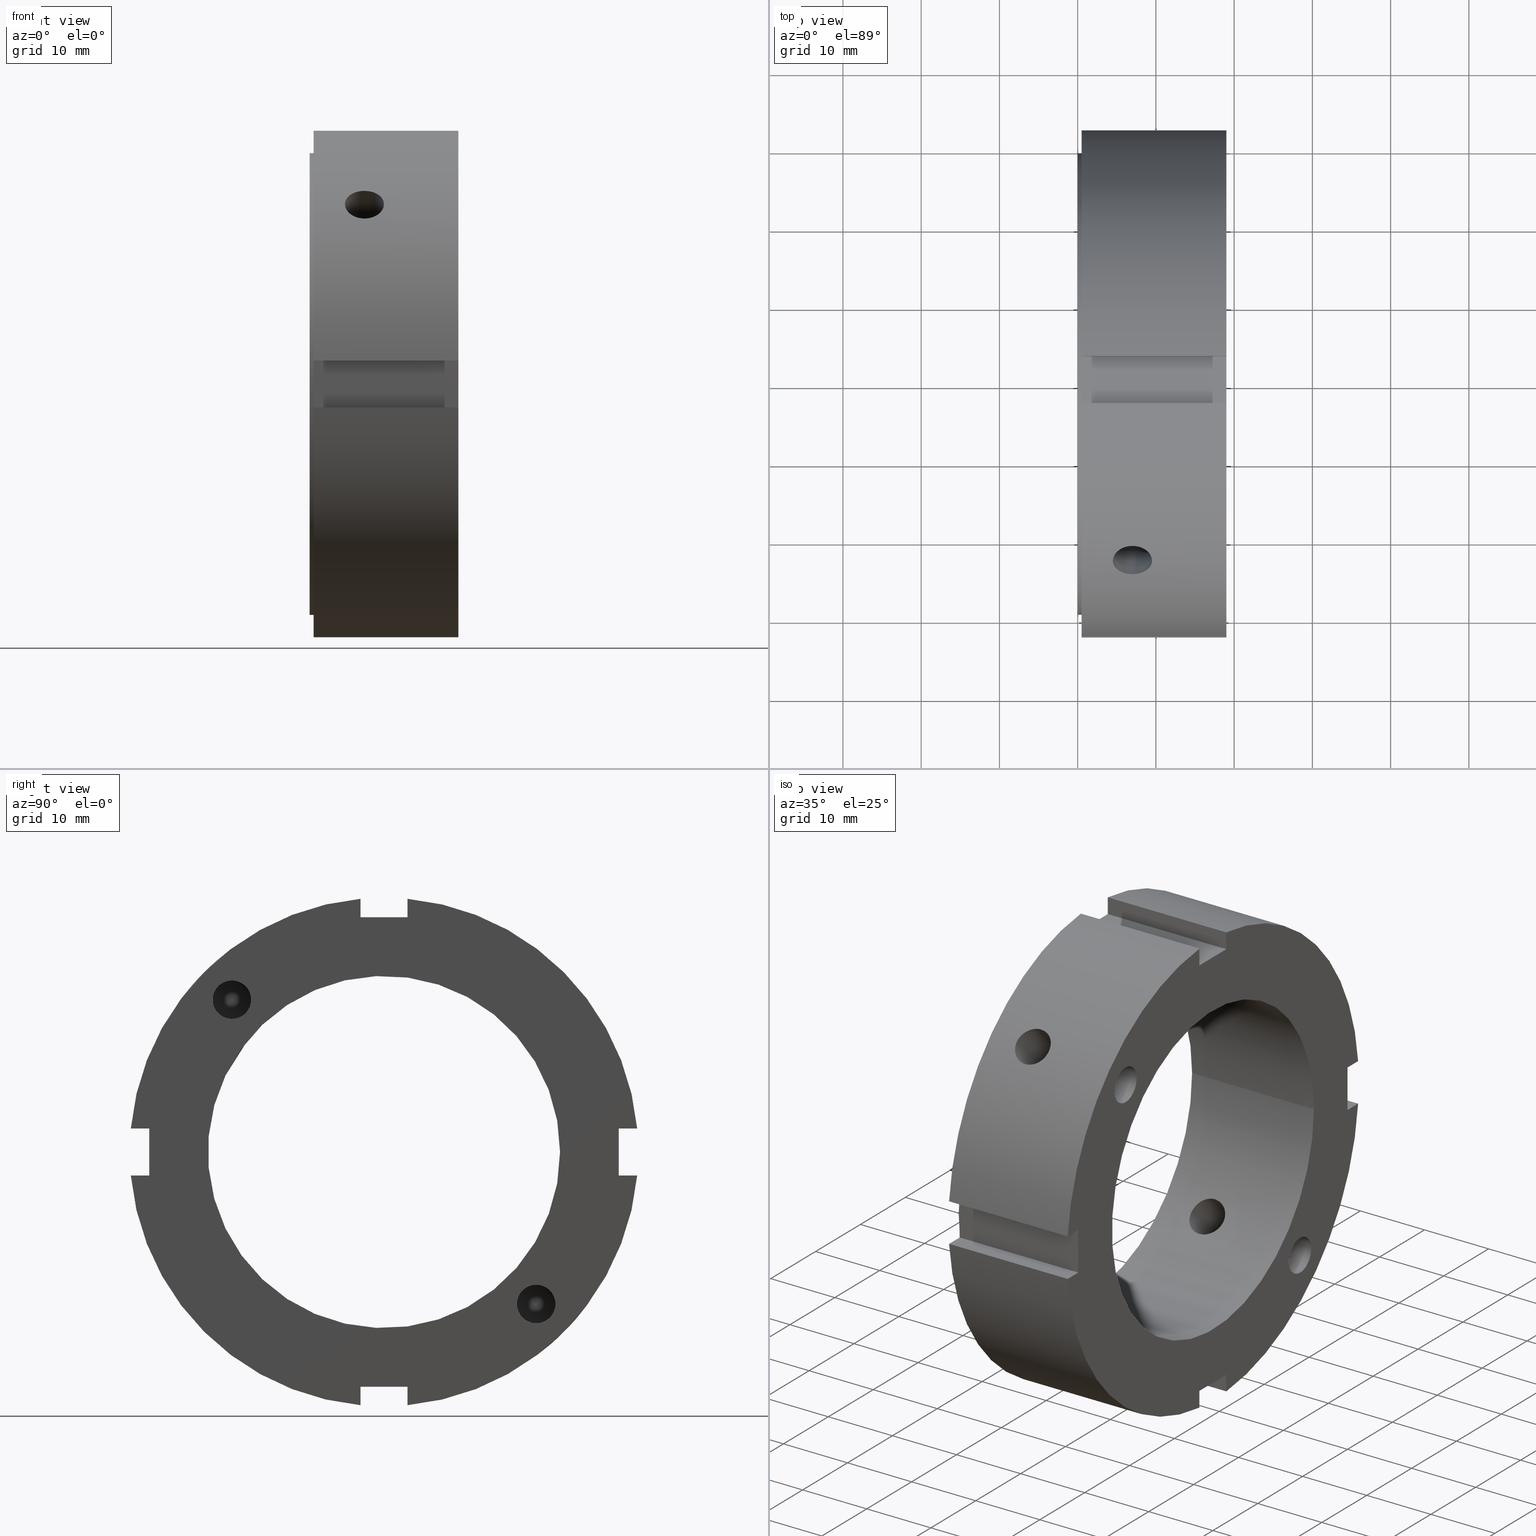
[diagram: canonical four-view strip — front | top / right | iso, engineering-drawing reading convention]
A machine part, canonical four-view strip (front | top / right | iso — engineering-drawing reading convention). The complete STEP part file that produces these views, byte-faithful:
ISO-10303-21;
HEADER;
/****************************************************************
 * Generated by software with PDE/Lib inside                    *
 * PDElib Version v51a, created Thu 01/14/2010                  *
 * ITI Transcendata (http://www.transcendata.com/)              *
 ****************************************************************/
FILE_DESCRIPTION((''),'2;1');
FILE_NAME('\\\\CAD-SVN\\cad-svn\\\X2\628088538AB2\X0\\\FKD\X2\88FD4F5C\X0\SP\\\X2\90E854C130E930A430D630E930EA\X0\\\HP \X2\30A230C330D730C730FC30C87528\X0\CAD\X2\30C730FC30BFFF0867007D42FF09\X0\\\3D data\\ZMV\\FKD ZMV 45.stp','2014-07-22T13:51:50',('fkd-ct1n'),(''),'Autodesk Inventor 2011','Autodesk Inventor 2011','');
FILE_SCHEMA(('AUTOMOTIVE_DESIGN { 1 0 10303 214 1 1 1 1 }'));
ENDSEC;
DATA;
#5=APPLICATION_CONTEXT('automotive design');
#6=APPLICATION_PROTOCOL_DEFINITION('International Standard','automotive_design',2001,#5);
#7=PRODUCT_CONTEXT('',#5,'mechanical');
#8=PRODUCT('FKD ZMV 45','FKD ZMV 45',$,(#7));
#9=PRODUCT_RELATED_PRODUCT_CATEGORY('part',$,(#8));
#10=PRODUCT_DEFINITION_FORMATION('',$,#8);
#11=PRODUCT_DEFINITION_CONTEXT('part definition',#5,'design');
#12=PRODUCT_DEFINITION('',$,#10,#11);
#18=(NAMED_UNIT(*)PLANE_ANGLE_UNIT()SI_UNIT($,.RADIAN.));
#19=DIMENSIONAL_EXPONENTS(0.0,0.0,0.0,0.0,0.0,0.0,0.0);
#20=PLANE_ANGLE_MEASURE_WITH_UNIT(PLANE_ANGLE_MEASURE(0.017453292500000),#18);
#24=(CONVERSION_BASED_UNIT('DEGREE',#20)NAMED_UNIT(#19)PLANE_ANGLE_UNIT());
#28=(NAMED_UNIT(*)SI_UNIT($,.STERADIAN.)SOLID_ANGLE_UNIT());
#32=(LENGTH_UNIT()NAMED_UNIT(*)SI_UNIT(.MILLI.,.METRE.));
#34=UNCERTAINTY_MEASURE_WITH_UNIT(LENGTH_MEASURE(0.010000000000000),#32,'DISTANCE_ACCURACY_VALUE','');
#36=(GEOMETRIC_REPRESENTATION_CONTEXT(3)GLOBAL_UNCERTAINTY_ASSIGNED_CONTEXT((#34))GLOBAL_UNIT_ASSIGNED_CONTEXT((#24,#28,#32))REPRESENTATION_CONTEXT('None','None'));
#37=AXIS2_PLACEMENT_3D('',#38,#39,#40);
#38=CARTESIAN_POINT('',(0.0,0.0,0.0));
#39=DIRECTION('',(0.0,0.0,1.0));
#40=DIRECTION('',(1.0,0.0,0.0));
#41=SHAPE_REPRESENTATION('',(#37),#36);
#42=PRODUCT_DEFINITION_SHAPE('','',#12);
#43=SHAPE_DEFINITION_REPRESENTATION(#42,#41);
#49=(NAMED_UNIT(*)PLANE_ANGLE_UNIT()SI_UNIT($,.RADIAN.));
#50=DIMENSIONAL_EXPONENTS(0.0,0.0,0.0,0.0,0.0,0.0,0.0);
#51=PLANE_ANGLE_MEASURE_WITH_UNIT(PLANE_ANGLE_MEASURE(0.017453292500000),#49);
#55=(CONVERSION_BASED_UNIT('DEGREE',#51)NAMED_UNIT(#50)PLANE_ANGLE_UNIT());
#59=(NAMED_UNIT(*)SI_UNIT($,.STERADIAN.)SOLID_ANGLE_UNIT());
#63=(LENGTH_UNIT()NAMED_UNIT(*)SI_UNIT(.MILLI.,.METRE.));
#65=UNCERTAINTY_MEASURE_WITH_UNIT(LENGTH_MEASURE(0.000001000000000),#63,'DISTANCE_ACCURACY_VALUE','');
#67=(GEOMETRIC_REPRESENTATION_CONTEXT(3)GLOBAL_UNCERTAINTY_ASSIGNED_CONTEXT((#65))GLOBAL_UNIT_ASSIGNED_CONTEXT((#55,#59,#63))REPRESENTATION_CONTEXT('','3D'));
#68=CARTESIAN_POINT('',(12.999999999999993,-19.445436482630047,19.445436482630065));
#69=DIRECTION('',(1.0,0.0,0.0));
#70=DIRECTION('',(0.0,0.0,1.0));
#71=AXIS2_PLACEMENT_3D('',#68,#69,#70);
#72=CYLINDRICAL_SURFACE('',#71,2.458500000000000);
#73=CARTESIAN_POINT('',(7.453627325014694,-21.183858504177181,17.707014461082942));
#74=VERTEX_POINT('',#73);
#75=CARTESIAN_POINT('',(7.453627325014694,-21.183858504177181,17.707014461082942));
#76=CARTESIAN_POINT('',(7.453627325014693,-21.110358126241778,17.633514083147542));
#77=CARTESIAN_POINT('',(7.485845144440775,-21.047802881600568,17.579208328488434));
#78=CARTESIAN_POINT('',(7.564508256890326,-20.925459364847416,17.480768485808394));
#79=CARTESIAN_POINT('',(7.612937817032506,-20.866150654097172,17.437637148322658));
#80=CARTESIAN_POINT('',(7.772228880000061,-20.681130872826486,17.314892414704659));
#81=CARTESIAN_POINT('',(7.895505545516923,-20.551120089678967,17.244094249145682));
#82=CARTESIAN_POINT('',(8.283828024816536,-20.121487460295356,17.061309000246240));
#83=CARTESIAN_POINT('',(8.561851096446020,-19.788585721959240,16.986936482630064));
#84=CARTESIAN_POINT('',(8.987347846502070,-19.166693223980413,16.986936482630064));
#85=CARTESIAN_POINT('',(9.170926118717720,-18.850775313804682,17.037495510761026));
#86=CARTESIAN_POINT('',(9.363473477026188,-18.392928171974624,17.217580192653223));
#87=CARTESIAN_POINT('',(9.414345366287385,-18.242718107297030,17.294551654487119));
#88=CARTESIAN_POINT('',(9.482622830029026,-17.959460337843371,17.479549422815367));
#89=CARTESIAN_POINT('',(9.499999999999993,-17.826424516589643,17.587604405576219));
#90=CARTESIAN_POINT('',(9.499999999999993,-17.587604405576204,17.826424516589654));
#91=CARTESIAN_POINT('',(9.482622830029026,-17.479549422815357,17.959460337843382));
#92=CARTESIAN_POINT('',(9.414345366287385,-17.294551654487105,18.242718107297044));
#93=CARTESIAN_POINT('',(9.363473477026188,-17.217580192653209,18.392928171974642));
#94=CARTESIAN_POINT('',(9.170926118717718,-17.037495510761012,18.850775313804700));
#95=CARTESIAN_POINT('',(8.987347846502070,-16.986936482630043,19.166693223980428));
#96=CARTESIAN_POINT('',(8.561851096446020,-16.986936482630043,19.788585721959254));
#97=CARTESIAN_POINT('',(8.283828024816542,-17.061309000246226,20.121487460295381));
#98=CARTESIAN_POINT('',(7.895505545516923,-17.244094249145661,20.551120089678992));
#99=CARTESIAN_POINT('',(7.772228880000050,-17.314892414704637,20.681130872826493));
#100=CARTESIAN_POINT('',(7.612937817032490,-17.437637148322640,20.866150654097186));
#101=CARTESIAN_POINT('',(7.564508256890323,-17.480768485808380,20.925459364847431));
#102=CARTESIAN_POINT('',(7.485845144440773,-17.579208328488424,21.047802881600589));
#103=CARTESIAN_POINT('',(7.453627325014677,-17.633514083147521,21.110358126241799));
#104=CARTESIAN_POINT('',(7.453627325014677,-17.780514839018316,21.257358882112595));
#105=CARTESIAN_POINT('',(7.485845144440775,-17.843070083659526,21.311664636771688));
#106=CARTESIAN_POINT('',(7.564508256890327,-17.965413600412681,21.410104479451732));
#107=CARTESIAN_POINT('',(7.612937817032500,-18.024722311162922,21.453235816937468));
#108=CARTESIAN_POINT('',(7.772228880000055,-18.209742092433615,21.575980550555471));
#109=CARTESIAN_POINT('',(7.895505545516919,-18.339752875581119,21.646778716114451));
#110=CARTESIAN_POINT('',(8.283828024816536,-18.769385504964731,21.829563965013890));
#111=CARTESIAN_POINT('',(8.561851096446020,-19.102287243300857,21.903936482630073));
#112=CARTESIAN_POINT('',(8.987347846502070,-19.724179741279684,21.903936482630073));
#113=CARTESIAN_POINT('',(9.170926118717723,-20.040097651455419,21.853377454499103));
#114=CARTESIAN_POINT('',(9.363473477026192,-20.497944793285477,21.673292772606906));
#115=CARTESIAN_POINT('',(9.414345366287385,-20.648154857963071,21.596321310773007));
#116=CARTESIAN_POINT('',(9.482622830029024,-20.931412627416726,21.411323542444759));
#117=CARTESIAN_POINT('',(9.499999999999993,-21.064448448670454,21.303268559683911));
#118=CARTESIAN_POINT('',(9.499999999999993,-21.303268559683893,21.064448448670475));
#119=CARTESIAN_POINT('',(9.482622830029028,-21.411323542444730,20.931412627416748));
#120=CARTESIAN_POINT('',(9.414345366287389,-21.596321310772982,20.648154857963096));
#121=CARTESIAN_POINT('',(9.363473477026194,-21.673292772606878,20.497944793285502));
#122=CARTESIAN_POINT('',(9.170926118717729,-21.853377454499075,20.040097651455451));
#123=CARTESIAN_POINT('',(8.987347846502079,-21.903936482630044,19.724179741279720));
#124=CARTESIAN_POINT('',(8.561851096446036,-21.903936482630051,19.102287243300896));
#125=CARTESIAN_POINT('',(8.283828024816556,-21.829563965013875,18.769385504964770));
#126=CARTESIAN_POINT('',(7.895505545516941,-21.646778716114436,18.339752875581159));
#127=CARTESIAN_POINT('',(7.772228880000065,-21.575980550555471,18.209742092433654));
#128=CARTESIAN_POINT('',(7.612937817032510,-21.453235816937468,18.024722311162961));
#129=CARTESIAN_POINT('',(7.564508256890340,-21.410104479451732,17.965413600412717));
#130=CARTESIAN_POINT('',(7.485845144440786,-21.311664636771688,17.843070083659562));
#131=CARTESIAN_POINT('',(7.453627325014701,-21.257358882112580,17.780514839018341));
#132=CARTESIAN_POINT('',(7.453627325014701,-21.183858504177181,17.707014461082942));
#133=B_SPLINE_CURVE_WITH_KNOTS('',3,(#75,#76,#77,#78,#79,#80,#81,#82,#83,#84,#85,#86,#87,#88,#89,#90,#91,#92,#93,#94,#95,#96,#97,#98,#99,#100,#101,#102,#103,#104,#105,#106,#107,#108,#109,#110,#111,#112,#113,#114,#115,#116,#117,#118,#119,#120,#121,#122,#123,#124,#125,#126,#127,#128,#129,#130,#131,#132),.UNSPECIFIED.,.T.,.U.,(4,2,2,2,2,2,2,2,2,2,2,2,2,2,2,2,2,2,2,2,2,2,2,2,2,2,2,2,4),(0.0,0.031183569394737,0.062367138789473,0.124734277578946,0.249468555157892,0.350791347146687,0.401452743141084,0.452114139135482,0.502775535129879,0.553436931124277,0.654759723113072,0.779494000692019,0.841861139481492,0.873044708876229,0.904228278270966,0.935411847665702,0.966595417060439,1.028962555849913,1.153696833428859,1.255019625417654,1.305681021412052,1.356342417406449,1.407003813400846,1.457665209395243,1.558988001384037,1.683722278962982,1.746089417752454,1.777272987147191,1.808456556541927),.UNSPECIFIED.);
#134=EDGE_CURVE('',#74,#74,#133,.T.);
#135=ORIENTED_EDGE('',*,*,#134,.F.);
#136=EDGE_LOOP('',(#135));
#137=FACE_OUTER_BOUND('',#136,.T.);
#138=CARTESIAN_POINT('',(18.999999999999993,-19.445436482630047,21.903936482630066));
#139=VERTEX_POINT('',#138);
#140=CARTESIAN_POINT('',(18.999999999999993,-19.445436482630047,19.445436482630065));
#141=DIRECTION('',(-1.0,0.0,0.0));
#142=DIRECTION('',(0.0,0.0,1.0));
#143=AXIS2_PLACEMENT_3D('',#140,#141,#142);
#144=CIRCLE('',#143,2.458500000000000);
#145=EDGE_CURVE('',#139,#139,#144,.T.);
#146=ORIENTED_EDGE('',*,*,#145,.F.);
#147=EDGE_LOOP('',(#146));
#148=FACE_BOUND('',#147,.T.);
#149=ADVANCED_FACE('',(#137,#148),#72,.F.);
#150=CARTESIAN_POINT('',(12.999999999999993,19.445436482630051,-19.445436482630065));
#151=DIRECTION('',(1.0,0.0,0.0));
#152=DIRECTION('',(0.0,0.0,-1.0));
#153=AXIS2_PLACEMENT_3D('',#150,#151,#152);
#154=CYLINDRICAL_SURFACE('',#153,2.458500000000000);
#155=CARTESIAN_POINT('',(7.453627325014712,17.707014461082927,-21.183858504177199));
#156=VERTEX_POINT('',#155);
#157=CARTESIAN_POINT('',(7.453627325014694,17.707014461082927,-21.183858504177199));
#158=CARTESIAN_POINT('',(7.453627325014697,17.780514839018323,-21.257358882112595));
#159=CARTESIAN_POINT('',(7.485845144440799,17.843070083659555,-21.311664636771713));
#160=CARTESIAN_POINT('',(7.564508256890359,17.965413600412720,-21.410104479451761));
#161=CARTESIAN_POINT('',(7.612937817032519,18.024722311162975,-21.453235816937504));
#162=CARTESIAN_POINT('',(7.772228880000082,18.209742092433668,-21.575980550555499));
#163=CARTESIAN_POINT('',(7.895505545516970,18.339752875581166,-21.646778716114468));
#164=CARTESIAN_POINT('',(8.283828024816582,18.769385504964781,-21.829563965013897));
#165=CARTESIAN_POINT('',(8.561851096446061,19.102287243300900,-21.903936482630058));
#166=CARTESIAN_POINT('',(8.987347846502093,19.724179741279716,-21.903936482630048));
#167=CARTESIAN_POINT('',(9.170926118717734,20.040097651455447,-21.853377454499089));
#168=CARTESIAN_POINT('',(9.363473477026195,20.497944793285487,-21.673292772606892));
#169=CARTESIAN_POINT('',(9.414345366287389,20.648154857963078,-21.596321310773000));
#170=CARTESIAN_POINT('',(9.482622830029026,20.931412627416726,-21.411323542444759));
#171=CARTESIAN_POINT('',(9.499999999999993,21.064448448670458,-21.303268559683900));
#172=CARTESIAN_POINT('',(9.499999999999993,21.303268559683893,-21.064448448670468));
#173=CARTESIAN_POINT('',(9.482622830029028,21.411323542444745,-20.931412627416744));
#174=CARTESIAN_POINT('',(9.414345366287385,21.596321310772993,-20.648154857963085));
#175=CARTESIAN_POINT('',(9.363473477026187,21.673292772606885,-20.497944793285484));
#176=CARTESIAN_POINT('',(9.170926118717720,21.853377454499086,-20.040097651455433));
#177=CARTESIAN_POINT('',(8.987347846502079,21.903936482630037,-19.724179741279702));
#178=CARTESIAN_POINT('',(8.561851096446040,21.903936482630037,-19.102287243300886));
#179=CARTESIAN_POINT('',(8.283828024816549,21.829563965013882,-18.769385504964774));
#180=CARTESIAN_POINT('',(7.895505545516941,21.646778716114447,-18.339752875581166));
#181=CARTESIAN_POINT('',(7.772228880000068,21.575980550555478,-18.209742092433661));
#182=CARTESIAN_POINT('',(7.612937817032515,21.453235816937479,-18.024722311162968));
#183=CARTESIAN_POINT('',(7.564508256890344,21.410104479451736,-17.965413600412717));
#184=CARTESIAN_POINT('',(7.485845144440787,21.311664636771688,-17.843070083659558));
#185=CARTESIAN_POINT('',(7.453627325014747,21.257358882112563,-17.780514839018338));
#186=CARTESIAN_POINT('',(7.453627325014747,21.110358126241771,-17.633514083147546));
#187=CARTESIAN_POINT('',(7.485845144440798,21.047802881600539,-17.579208328488413));
#188=CARTESIAN_POINT('',(7.564508256890358,20.925459364847381,-17.480768485808369));
#189=CARTESIAN_POINT('',(7.612937817032524,20.866150654097140,-17.437637148322636));
#190=CARTESIAN_POINT('',(7.772228880000091,20.681130872826454,-17.314892414704637));
#191=CARTESIAN_POINT('',(7.895505545516953,20.551120089678932,-17.244094249145657));
#192=CARTESIAN_POINT('',(8.283828024816561,20.121487460295320,-17.061309000246222));
#193=CARTESIAN_POINT('',(8.561851096446038,19.788585721959226,-16.986936482630064));
#194=CARTESIAN_POINT('',(8.987347846502081,19.166693223980403,-16.986936482630064));
#195=CARTESIAN_POINT('',(9.170926118717729,18.850775313804672,-17.037495510761026));
#196=CARTESIAN_POINT('',(9.363473477026195,18.392928171974617,-17.217580192653230));
#197=CARTESIAN_POINT('',(9.414345366287387,18.242718107297019,-17.294551654487126));
#198=CARTESIAN_POINT('',(9.482622830029028,17.959460337843357,-17.479549422815378));
#199=CARTESIAN_POINT('',(9.499999999999995,17.826424516589633,-17.587604405576233));
#200=CARTESIAN_POINT('',(9.499999999999991,17.587604405576197,-17.826424516589668));
#201=CARTESIAN_POINT('',(9.482622830029023,17.479549422815346,-17.959460337843396));
#202=CARTESIAN_POINT('',(9.414345366287382,17.294551654487101,-18.242718107297055));
#203=CARTESIAN_POINT('',(9.363473477026185,17.217580192653209,-18.392928171974653));
#204=CARTESIAN_POINT('',(9.170926118717715,17.037495510761012,-18.850775313804704));
#205=CARTESIAN_POINT('',(8.987347846502068,16.986936482630053,-19.166693223980438));
#206=CARTESIAN_POINT('',(8.561851096446024,16.986936482630057,-19.788585721959265));
#207=CARTESIAN_POINT('',(8.283828024816538,17.061309000246222,-20.121487460295370));
#208=CARTESIAN_POINT('',(7.895505545516929,17.244094249145657,-20.551120089678978));
#209=CARTESIAN_POINT('',(7.772228880000074,17.314892414704637,-20.681130872826490));
#210=CARTESIAN_POINT('',(7.612937817032517,17.437637148322636,-20.866150654097176));
#211=CARTESIAN_POINT('',(7.564508256890345,17.480768485808365,-20.925459364847413));
#212=CARTESIAN_POINT('',(7.485845144440796,17.579208328488413,-21.047802881600571));
#213=CARTESIAN_POINT('',(7.453627325014710,17.633514083147531,-21.110358126241803));
#214=CARTESIAN_POINT('',(7.453627325014712,17.707014461082927,-21.183858504177199));
#215=B_SPLINE_CURVE_WITH_KNOTS('',3,(#157,#158,#159,#160,#161,#162,#163,#164,#165,#166,#167,#168,#169,#170,#171,#172,#173,#174,#175,#176,#177,#178,#179,#180,#181,#182,#183,#184,#185,#186,#187,#188,#189,#190,#191,#192,#193,#194,#195,#196,#197,#198,#199,#200,#201,#202,#203,#204,#205,#206,#207,#208,#209,#210,#211,#212,#213,#214),.UNSPECIFIED.,.T.,.U.,(4,2,2,2,2,2,2,2,2,2,2,2,2,2,2,2,2,2,2,2,2,2,2,2,2,2,2,2,4),(0.0,0.031183569394736,0.062367138789472,0.124734277578943,0.249468555157887,0.350791347146679,0.401452743141076,0.452114139135472,0.502775535129869,0.553436931124266,0.654759723113060,0.779494000692003,0.841861139481475,0.873044708876211,0.904228278270947,0.935411847665683,0.966595417060419,1.028962555849891,1.153696833428835,1.255019625417630,1.305681021412028,1.356342417406425,1.407003813400822,1.457665209395219,1.558988001384014,1.683722278962959,1.746089417752431,1.777272987147168,1.808456556541904),.UNSPECIFIED.);
#216=EDGE_CURVE('',#156,#156,#215,.T.);
#217=ORIENTED_EDGE('',*,*,#216,.F.);
#218=EDGE_LOOP('',(#217));
#219=FACE_OUTER_BOUND('',#218,.T.);
#220=CARTESIAN_POINT('',(18.999999999999993,19.445436482630051,-21.903936482630062));
#221=VERTEX_POINT('',#220);
#222=CARTESIAN_POINT('',(18.999999999999993,19.445436482630051,-19.445436482630065));
#223=DIRECTION('',(-1.0,0.0,0.0));
#224=DIRECTION('',(0.0,0.0,-1.0));
#225=AXIS2_PLACEMENT_3D('',#222,#223,#224);
#226=CIRCLE('',#225,2.458500000000000);
#227=EDGE_CURVE('',#221,#221,#226,.T.);
#228=ORIENTED_EDGE('',*,*,#227,.F.);
#229=EDGE_LOOP('',(#228));
#230=FACE_BOUND('',#229,.T.);
#231=ADVANCED_FACE('',(#219,#230),#154,.F.);
#232=CARTESIAN_POINT('',(6.999999999999993,-43.121223221029304,43.121223221029339));
#233=DIRECTION('',(0.0,0.707106781186547,-0.707106781186548));
#234=DIRECTION('',(-1.0,0.0,0.0));
#235=AXIS2_PLACEMENT_3D('',#232,#233,#234);
#236=CYLINDRICAL_SURFACE('',#235,2.500000000000000);
#237=CARTESIAN_POINT('',(6.999999999999993,-14.043621347875519,17.579155253808270));
#238=VERTEX_POINT('',#237);
#239=CARTESIAN_POINT('',(6.999999999999994,-14.043621347875519,17.579155253808270));
#240=CARTESIAN_POINT('',(6.685815010734660,-14.043621347875519,17.579155253808270));
#241=CARTESIAN_POINT('',(6.350866698850043,-14.093223241805173,17.539883571675340));
#242=CARTESIAN_POINT('',(5.734995938231306,-14.292309527771041,17.378042045223999));
#243=CARTESIAN_POINT('',(5.454051212351734,-14.441511353606579,17.255209611380181));
#244=CARTESIAN_POINT('',(5.010416035019474,-14.779931617737045,16.966234990981569));
#245=CARTESIAN_POINT('',(4.818057863310505,-14.991738989516554,16.780725808899280));
#246=CARTESIAN_POINT('',(4.562842692694734,-15.445767425041923,16.363779063910506));
#247=CARTESIAN_POINT('',(4.499999999999992,-15.687741395334189,16.132063758060447));
#248=CARTESIAN_POINT('',(4.499999999999994,-16.132063758060436,15.687741395334204));
#249=CARTESIAN_POINT('',(4.562842692694736,-16.363779063910496,15.445767425041934));
#250=CARTESIAN_POINT('',(4.818057863310505,-16.780725808899270,14.991738989516566));
#251=CARTESIAN_POINT('',(5.010416035019474,-16.966234990981558,14.779931617737056));
#252=CARTESIAN_POINT('',(5.454051212351734,-17.255209611380167,14.441511353606590));
#253=CARTESIAN_POINT('',(5.734995938231307,-17.378042045223985,14.292309527771057));
#254=CARTESIAN_POINT('',(6.350866698850044,-17.539883571675325,14.093223241805187));
#255=CARTESIAN_POINT('',(6.685815010734659,-17.579155253808256,14.043621347875540));
#256=CARTESIAN_POINT('',(7.314184989265327,-17.579155253808256,14.043621347875542));
#257=CARTESIAN_POINT('',(7.649133301149941,-17.539883571675322,14.093223241805191));
#258=CARTESIAN_POINT('',(8.265004061768677,-17.378042045223985,14.292309527771058));
#259=CARTESIAN_POINT('',(8.545948787648252,-17.255209611380167,14.441511353606591));
#260=CARTESIAN_POINT('',(8.989583964980511,-16.966234990981555,14.779931617737054));
#261=CARTESIAN_POINT('',(9.181942136689480,-16.780725808899266,14.991738989516568));
#262=CARTESIAN_POINT('',(9.437157307305251,-16.363779063910496,15.445767425041934));
#263=CARTESIAN_POINT('',(9.499999999999991,-16.132063758060436,15.687741395334204));
#264=CARTESIAN_POINT('',(9.499999999999995,-15.687741395334189,16.132063758060447));
#265=CARTESIAN_POINT('',(9.437157307305252,-15.445767425041922,16.363779063910506));
#266=CARTESIAN_POINT('',(9.181942136689482,-14.991738989516552,16.780725808899280));
#267=CARTESIAN_POINT('',(8.989583964980515,-14.779931617737045,16.966234990981569));
#268=CARTESIAN_POINT('',(8.545948787648252,-14.441511353606579,17.255209611380181));
#269=CARTESIAN_POINT('',(8.265004061768682,-14.292309527771041,17.378042045223999));
#270=CARTESIAN_POINT('',(7.649133301149945,-14.093223241805173,17.539883571675340));
#271=CARTESIAN_POINT('',(7.314184989265327,-14.043621347875519,17.579155253808270));
#272=CARTESIAN_POINT('',(6.999999999999993,-14.043621347875519,17.579155253808270));
#273=B_SPLINE_CURVE_WITH_KNOTS('',3,(#239,#240,#241,#242,#243,#244,#245,#246,#247,#248,#249,#250,#251,#252,#253,#254,#255,#256,#257,#258,#259,#260,#261,#262,#263,#264,#265,#266,#267,#268,#269,#270,#271,#272),.UNSPECIFIED.,.T.,.U.,(4,2,2,2,2,2,2,2,2,2,2,2,2,2,2,2,4),(0.0,0.094255496779600,0.188510993559200,0.282766000274168,0.377021006989135,0.471276013704102,0.565531020419070,0.659786517198670,0.754042013978270,0.848297510757870,0.942553007537470,1.036808014252437,1.131063020967405,1.225318027682372,1.319573034397340,1.413828531176940,1.508084027956540),.UNSPECIFIED.);
#274=EDGE_CURVE('',#238,#238,#273,.T.);
#275=ORIENTED_EDGE('',*,*,#274,.F.);
#276=EDGE_LOOP('',(#275));
#277=FACE_OUTER_BOUND('',#276,.T.);
#278=ORIENTED_EDGE('',*,*,#134,.T.);
#279=EDGE_LOOP('',(#278));
#280=FACE_BOUND('',#279,.T.);
#281=CARTESIAN_POINT('',(6.999999999999993,-21.145111521812822,24.680645427745578));
#282=VERTEX_POINT('',#281);
#283=CARTESIAN_POINT('',(6.999999999999993,-21.145111521812822,24.680645427745578));
#284=CARTESIAN_POINT('',(7.314038878983578,-21.145111521812822,24.680645427745578));
#285=CARTESIAN_POINT('',(7.648925005757864,-21.193068525340326,24.639809402754448));
#286=CARTESIAN_POINT('',(8.264836526164988,-21.386358016310318,24.472230214677197));
#287=CARTESIAN_POINT('',(8.545872481211177,-21.531499546972416,24.345305718344228));
#288=CARTESIAN_POINT('',(8.989661161289906,-21.862399633320805,24.048593834497627));
#289=CARTESIAN_POINT('',(9.182041097539965,-22.070218890903689,23.858968067764383));
#290=CARTESIAN_POINT('',(9.437213945238458,-22.518562594759700,23.436280801691414));
#291=CARTESIAN_POINT('',(9.499999999999993,-22.758911631304262,23.203029145821326));
#292=CARTESIAN_POINT('',(9.499999999999993,-23.203029145821308,22.758911631304279));
#293=CARTESIAN_POINT('',(9.437213945238455,-23.436280801691399,22.518562594759718));
#294=CARTESIAN_POINT('',(9.182041097539964,-23.858968067764369,22.070218890903707));
#295=CARTESIAN_POINT('',(8.989661161289906,-24.048593834497609,21.862399633320820));
#296=CARTESIAN_POINT('',(8.545872481211177,-24.345305718344214,21.531499546972434));
#297=CARTESIAN_POINT('',(8.264836526164986,-24.472230214677182,21.386358016310339));
#298=CARTESIAN_POINT('',(7.648925005757864,-24.639809402754437,21.193068525340347));
#299=CARTESIAN_POINT('',(7.314038878983578,-24.680645427745553,21.145111521812847));
#300=CARTESIAN_POINT('',(6.685961121016407,-24.680645427745556,21.145111521812847));
#301=CARTESIAN_POINT('',(6.351074994242119,-24.639809402754437,21.193068525340347));
#302=CARTESIAN_POINT('',(5.735163473834999,-24.472230214677182,21.386358016310339));
#303=CARTESIAN_POINT('',(5.454127518788808,-24.345305718344214,21.531499546972441));
#304=CARTESIAN_POINT('',(5.010338838710080,-24.048593834497609,21.862399633320820));
#305=CARTESIAN_POINT('',(4.817958902460022,-23.858968067764369,22.070218890903707));
#306=CARTESIAN_POINT('',(4.562786054761530,-23.436280801691399,22.518562594759718));
#307=CARTESIAN_POINT('',(4.499999999999993,-23.203029145821308,22.758911631304279));
#308=CARTESIAN_POINT('',(4.499999999999993,-22.758911631304262,23.203029145821326));
#309=CARTESIAN_POINT('',(4.562786054761529,-22.518562594759700,23.436280801691414));
#310=CARTESIAN_POINT('',(4.817958902460021,-22.070218890903689,23.858968067764383));
#311=CARTESIAN_POINT('',(5.010338838710078,-21.862399633320805,24.048593834497627));
#312=CARTESIAN_POINT('',(5.454127518788807,-21.531499546972416,24.345305718344228));
#313=CARTESIAN_POINT('',(5.735163473834999,-21.386358016310318,24.472230214677204));
#314=CARTESIAN_POINT('',(6.351074994242124,-21.193068525340326,24.639809402754452));
#315=CARTESIAN_POINT('',(6.685961121016407,-21.145111521812822,24.680645427745578));
#316=CARTESIAN_POINT('',(6.999999999999993,-21.145111521812822,24.680645427745578));
#317=B_SPLINE_CURVE_WITH_KNOTS('',3,(#283,#284,#285,#286,#287,#288,#289,#290,#291,#292,#293,#294,#295,#296,#297,#298,#299,#300,#301,#302,#303,#304,#305,#306,#307,#308,#309,#310,#311,#312,#313,#314,#315,#316),.UNSPECIFIED.,.T.,.U.,(4,2,2,2,2,2,2,2,2,2,2,2,2,2,2,2,4),(0.0,0.094211663695076,0.188423327390152,0.282634879237766,0.376846431085381,0.471057982932996,0.565269534780610,0.659481198475686,0.753692862170762,0.847904525865837,0.942116189560913,1.036327741408528,1.130539293256142,1.224750845103757,1.318962396951372,1.413174060646448,1.507385724341523),.UNSPECIFIED.);
#318=EDGE_CURVE('',#282,#282,#317,.T.);
#319=ORIENTED_EDGE('',*,*,#318,.F.);
#320=EDGE_LOOP('',(#319));
#321=FACE_BOUND('',#320,.T.);
#322=ADVANCED_FACE('',(#277,#280,#321),#236,.F.);
#323=CARTESIAN_POINT('',(6.999999999999993,-43.121223221029304,43.121223221029339));
#324=DIRECTION('',(0.0,0.707106781186547,-0.707106781186548));
#325=DIRECTION('',(-1.0,0.0,0.0));
#326=AXIS2_PLACEMENT_3D('',#323,#324,#325);
#327=CYLINDRICAL_SURFACE('',#326,2.500000000000000);
#328=CARTESIAN_POINT('',(4.499999999999993,22.980970388562785,-22.980970388562802));
#329=VERTEX_POINT('',#328);
#330=CARTESIAN_POINT('',(9.499999999999993,22.980970388562785,-22.980970388562802));
#331=VERTEX_POINT('',#330);
#332=CARTESIAN_POINT('',(4.499999999999993,22.980970388562785,-22.980970388562799));
#333=CARTESIAN_POINT('',(4.499999999999993,22.758911631304262,-23.203029145821322));
#334=CARTESIAN_POINT('',(4.562786054761529,22.518562594759700,-23.436280801691417));
#335=CARTESIAN_POINT('',(4.817958902460021,22.070218890903689,-23.858968067764387));
#336=CARTESIAN_POINT('',(5.010338838710080,21.862399633320805,-24.048593834497627));
#337=CARTESIAN_POINT('',(5.454127518788808,21.531499546972420,-24.345305718344228));
#338=CARTESIAN_POINT('',(5.735163473834998,21.386358016310322,-24.472230214677204));
#339=CARTESIAN_POINT('',(6.351074994242119,21.193068525340330,-24.639809402754452));
#340=CARTESIAN_POINT('',(6.685961121016407,21.145111521812826,-24.680645427745567));
#341=CARTESIAN_POINT('',(7.314038878983578,21.145111521812826,-24.680645427745567));
#342=CARTESIAN_POINT('',(7.648925005757866,21.193068525340330,-24.639809402754452));
#343=CARTESIAN_POINT('',(8.264836526164988,21.386358016310322,-24.472230214677204));
#344=CARTESIAN_POINT('',(8.545872481211177,21.531499546972420,-24.345305718344228));
#345=CARTESIAN_POINT('',(8.989661161289906,21.862399633320805,-24.048593834497627));
#346=CARTESIAN_POINT('',(9.182041097539964,22.070218890903689,-23.858968067764394));
#347=CARTESIAN_POINT('',(9.437213945238456,22.518562594759707,-23.436280801691417));
#348=CARTESIAN_POINT('',(9.499999999999993,22.758911631304262,-23.203029145821322));
#349=CARTESIAN_POINT('',(9.499999999999993,22.980970388562785,-22.980970388562802));
#350=B_SPLINE_CURVE_WITH_KNOTS('',3,(#332,#333,#334,#335,#336,#337,#338,#339,#340,#341,#342,#343,#344,#345,#346,#347,#348,#349),.UNSPECIFIED.,.F.,.U.,(4,2,2,2,2,2,2,2,4),(0.376846431085381,0.471057982932995,0.565269534780610,0.659481198475686,0.753692862170761,0.847904525865837,0.942116189560913,1.036327741408528,1.130539293256142),.UNSPECIFIED.);
#351=EDGE_CURVE('',#329,#331,#350,.T.);
#352=ORIENTED_EDGE('',*,*,#351,.F.);
#353=CARTESIAN_POINT('',(9.499999999999993,22.980970388562785,-22.980970388562806));
#354=CARTESIAN_POINT('',(9.499999999999993,23.203029145821308,-22.758911631304283));
#355=CARTESIAN_POINT('',(9.437213945238455,23.436280801691403,-22.518562594759718));
#356=CARTESIAN_POINT('',(9.182041097539962,23.858968067764373,-22.070218890903707));
#357=CARTESIAN_POINT('',(8.989661161289906,24.048593834497609,-21.862399633320820));
#358=CARTESIAN_POINT('',(8.545872481211179,24.345305718344214,-21.531499546972441));
#359=CARTESIAN_POINT('',(8.264836526164988,24.472230214677182,-21.386358016310339));
#360=CARTESIAN_POINT('',(7.648925005757866,24.639809402754437,-21.193068525340347));
#361=CARTESIAN_POINT('',(7.314038878983579,24.680645427745556,-21.145111521812844));
#362=CARTESIAN_POINT('',(6.999999999999993,24.680645427745556,-21.145111521812844));
#363=CARTESIAN_POINT('',(6.685961121016407,24.680645427745556,-21.145111521812844));
#364=CARTESIAN_POINT('',(6.351074994242122,24.639809402754430,-21.193068525340344));
#365=CARTESIAN_POINT('',(5.735163473834999,24.472230214677179,-21.386358016310332));
#366=CARTESIAN_POINT('',(5.454127518788808,24.345305718344214,-21.531499546972434));
#367=CARTESIAN_POINT('',(5.010338838710080,24.048593834497609,-21.862399633320820));
#368=CARTESIAN_POINT('',(4.817958902460021,23.858968067764369,-22.070218890903707));
#369=CARTESIAN_POINT('',(4.562786054761529,23.436280801691399,-22.518562594759718));
#370=CARTESIAN_POINT('',(4.499999999999993,23.203029145821304,-22.758911631304279));
#371=CARTESIAN_POINT('',(4.499999999999993,22.980970388562781,-22.980970388562802));
#372=B_SPLINE_CURVE_WITH_KNOTS('',3,(#353,#354,#355,#356,#357,#358,#359,#360,#361,#362,#363,#364,#365,#366,#367,#368,#369,#370,#371),.UNSPECIFIED.,.F.,.U.,(4,2,2,2,3,2,2,2,4),(1.130539293256142,1.224750845103757,1.318962396951372,1.413174060646447,1.507385724341523,1.601597388036599,1.695809051731675,1.790020603579289,1.884232155426904),.UNSPECIFIED.);
#373=EDGE_CURVE('',#331,#329,#372,.T.);
#374=ORIENTED_EDGE('',*,*,#373,.F.);
#375=EDGE_LOOP('',(#352,#374));
#376=FACE_OUTER_BOUND('',#375,.T.);
#377=ORIENTED_EDGE('',*,*,#216,.T.);
#378=EDGE_LOOP('',(#377));
#379=FACE_BOUND('',#378,.T.);
#380=CARTESIAN_POINT('',(6.999999999999993,17.579155253808260,-14.043621347875533));
#381=VERTEX_POINT('',#380);
#382=CARTESIAN_POINT('',(6.999999999999993,17.579155253808260,-14.043621347875533));
#383=CARTESIAN_POINT('',(7.314184989265327,17.579155253808260,-14.043621347875533));
#384=CARTESIAN_POINT('',(7.649133301149944,17.539883571675325,-14.093223241805187));
#385=CARTESIAN_POINT('',(8.265004061768682,17.378042045223985,-14.292309527771057));
#386=CARTESIAN_POINT('',(8.545948787648253,17.255209611380170,-14.441511353606590));
#387=CARTESIAN_POINT('',(8.989583964980515,16.966234990981558,-14.779931617737056));
#388=CARTESIAN_POINT('',(9.181942136689486,16.780725808899266,-14.991738989516570));
#389=CARTESIAN_POINT('',(9.437157307305252,16.363779063910496,-15.445767425041936));
#390=CARTESIAN_POINT('',(9.499999999999993,16.132063758060436,-15.687741395334204));
#391=CARTESIAN_POINT('',(9.499999999999993,15.687741395334189,-16.132063758060447));
#392=CARTESIAN_POINT('',(9.437157307305251,15.445767425041923,-16.363779063910506));
#393=CARTESIAN_POINT('',(9.181942136689480,14.991738989516554,-16.780725808899280));
#394=CARTESIAN_POINT('',(8.989583964980511,14.779931617737043,-16.966234990981569));
#395=CARTESIAN_POINT('',(8.545948787648252,14.441511353606579,-17.255209611380181));
#396=CARTESIAN_POINT('',(8.265004061768677,14.292309527771042,-17.378042045223996));
#397=CARTESIAN_POINT('',(7.649133301149941,14.093223241805175,-17.539883571675333));
#398=CARTESIAN_POINT('',(7.314184989265327,14.043621347875526,-17.579155253808267));
#399=CARTESIAN_POINT('',(6.685815010734659,14.043621347875526,-17.579155253808267));
#400=CARTESIAN_POINT('',(6.350866698850045,14.093223241805175,-17.539883571675333));
#401=CARTESIAN_POINT('',(5.734995938231309,14.292309527771042,-17.378042045223996));
#402=CARTESIAN_POINT('',(5.454051212351735,14.441511353606579,-17.255209611380181));
#403=CARTESIAN_POINT('',(5.010416035019475,14.779931617737045,-16.966234990981569));
#404=CARTESIAN_POINT('',(4.818057863310507,14.991738989516552,-16.780725808899280));
#405=CARTESIAN_POINT('',(4.562842692694736,15.445767425041922,-16.363779063910510));
#406=CARTESIAN_POINT('',(4.499999999999993,15.687741395334189,-16.132063758060447));
#407=CARTESIAN_POINT('',(4.499999999999993,16.132063758060436,-15.687741395334204));
#408=CARTESIAN_POINT('',(4.562842692694734,16.363779063910492,-15.445767425041934));
#409=CARTESIAN_POINT('',(4.818057863310503,16.780725808899266,-14.991738989516566));
#410=CARTESIAN_POINT('',(5.010416035019473,16.966234990981558,-14.779931617737056));
#411=CARTESIAN_POINT('',(5.454051212351734,17.255209611380170,-14.441511353606590));
#412=CARTESIAN_POINT('',(5.734995938231306,17.378042045223985,-14.292309527771055));
#413=CARTESIAN_POINT('',(6.350866698850042,17.539883571675322,-14.093223241805186));
#414=CARTESIAN_POINT('',(6.685815010734659,17.579155253808260,-14.043621347875533));
#415=CARTESIAN_POINT('',(6.999999999999993,17.579155253808260,-14.043621347875533));
#416=B_SPLINE_CURVE_WITH_KNOTS('',3,(#382,#383,#384,#385,#386,#387,#388,#389,#390,#391,#392,#393,#394,#395,#396,#397,#398,#399,#400,#401,#402,#403,#404,#405,#406,#407,#408,#409,#410,#411,#412,#413,#414,#415),.UNSPECIFIED.,.T.,.U.,(4,2,2,2,2,2,2,2,2,2,2,2,2,2,2,2,4),(0.0,0.094255496779600,0.188510993559200,0.282766000274168,0.377021006989135,0.471276013704103,0.565531020419070,0.659786517198670,0.754042013978270,0.848297510757870,0.942553007537470,1.036808014252438,1.131063020967405,1.225318027682373,1.319573034397340,1.413828531176940,1.508084027956540),.UNSPECIFIED.);
#417=EDGE_CURVE('',#381,#381,#416,.T.);
#418=ORIENTED_EDGE('',*,*,#417,.F.);
#419=EDGE_LOOP('',(#418));
#420=FACE_BOUND('',#419,.T.);
#421=ADVANCED_FACE('',(#376,#379,#420),#327,.F.);
#422=CARTESIAN_POINT('',(18.999999999999993,-3.000000000000005,-30.0));
#423=DIRECTION('',(0.0,-1.0,0.0));
#424=DIRECTION('',(-1.0,0.0,0.0));
#425=AXIS2_PLACEMENT_3D('',#422,#423,#424);
#426=PLANE('',#425);
#427=CARTESIAN_POINT('',(0.499999999999994,-3.000000000000005,-30.0));
#428=VERTEX_POINT('',#427);
#429=CARTESIAN_POINT('',(0.499999999999994,-3.000000000000005,-32.361242250568807));
#430=VERTEX_POINT('',#429);
#431=CARTESIAN_POINT('',(0.499999999999993,-3.000000000000007,-30.0));
#432=DIRECTION('',(0.0,0.0,-1.0));
#433=VECTOR('',#432,2.361242250568807);
#434=LINE('',#431,#433);
#435=EDGE_CURVE('',#428,#430,#434,.T.);
#436=ORIENTED_EDGE('',*,*,#435,.F.);
#437=CARTESIAN_POINT('',(18.999999999999993,-3.000000000000005,-30.0));
#438=VERTEX_POINT('',#437);
#439=CARTESIAN_POINT('',(18.999999999999993,-3.000000000000005,-30.0));
#440=DIRECTION('',(-1.0,0.0,0.0));
#441=VECTOR('',#440,18.500000000000000);
#442=LINE('',#439,#441);
#443=EDGE_CURVE('',#438,#428,#442,.T.);
#444=ORIENTED_EDGE('',*,*,#443,.F.);
#445=CARTESIAN_POINT('',(18.999999999999993,-3.000000000000005,-32.361242250568814));
#446=VERTEX_POINT('',#445);
#447=CARTESIAN_POINT('',(18.999999999999993,-3.000000000000007,-32.361242250568814));
#448=DIRECTION('',(0.0,0.0,1.0));
#449=VECTOR('',#448,2.361242250568814);
#450=LINE('',#447,#449);
#451=EDGE_CURVE('',#446,#438,#450,.T.);
#452=ORIENTED_EDGE('',*,*,#451,.F.);
#453=CARTESIAN_POINT('',(0.499999999999993,-3.000000000000005,-32.361242250568814));
#454=DIRECTION('',(1.0,0.0,0.0));
#455=VECTOR('',#454,18.500000000000000);
#456=LINE('',#453,#455);
#457=EDGE_CURVE('',#430,#446,#456,.T.);
#458=ORIENTED_EDGE('',*,*,#457,.F.);
#459=EDGE_LOOP('',(#436,#444,#452,#458));
#460=FACE_OUTER_BOUND('',#459,.T.);
#461=ADVANCED_FACE('',(#460),#426,.F.);
#462=CARTESIAN_POINT('',(18.999999999999993,2.999999999999993,-32.500000000000000));
#463=DIRECTION('',(0.0,1.0,0.0));
#464=DIRECTION('',(1.0,0.0,0.0));
#465=AXIS2_PLACEMENT_3D('',#462,#463,#464);
#466=PLANE('',#465);
#467=CARTESIAN_POINT('',(0.499999999999994,2.999999999999993,-32.361242250568807));
#468=VERTEX_POINT('',#467);
#469=CARTESIAN_POINT('',(0.499999999999994,2.999999999999994,-30.0));
#470=VERTEX_POINT('',#469);
#471=CARTESIAN_POINT('',(0.499999999999993,2.999999999999994,-32.361242250568807));
#472=DIRECTION('',(0.0,0.0,1.0));
#473=VECTOR('',#472,2.361242250568807);
#474=LINE('',#471,#473);
#475=EDGE_CURVE('',#468,#470,#474,.T.);
#476=ORIENTED_EDGE('',*,*,#475,.F.);
#477=CARTESIAN_POINT('',(18.999999999999993,2.999999999999993,-32.361242250568814));
#478=VERTEX_POINT('',#477);
#479=CARTESIAN_POINT('',(18.999999999999993,2.999999999999993,-32.361242250568822));
#480=DIRECTION('',(-1.0,0.0,0.0));
#481=VECTOR('',#480,18.500000000000000);
#482=LINE('',#479,#481);
#483=EDGE_CURVE('',#478,#468,#482,.T.);
#484=ORIENTED_EDGE('',*,*,#483,.F.);
#485=CARTESIAN_POINT('',(18.999999999999993,2.999999999999994,-30.0));
#486=VERTEX_POINT('',#485);
#487=CARTESIAN_POINT('',(18.999999999999993,2.999999999999995,-30.0));
#488=DIRECTION('',(0.0,0.0,-1.0));
#489=VECTOR('',#488,2.361242250568814);
#490=LINE('',#487,#489);
#491=EDGE_CURVE('',#486,#478,#490,.T.);
#492=ORIENTED_EDGE('',*,*,#491,.F.);
#493=CARTESIAN_POINT('',(18.999999999999993,2.999999999999994,-30.0));
#494=DIRECTION('',(-1.0,0.0,0.0));
#495=VECTOR('',#494,18.500000000000000);
#496=LINE('',#493,#495);
#497=EDGE_CURVE('',#486,#470,#496,.T.);
#498=ORIENTED_EDGE('',*,*,#497,.T.);
#499=EDGE_LOOP('',(#476,#484,#492,#498));
#500=FACE_OUTER_BOUND('',#499,.T.);
#501=ADVANCED_FACE('',(#500),#466,.F.);
#502=CARTESIAN_POINT('',(18.999999999999993,2.999999999999994,-30.0));
#503=DIRECTION('',(0.0,0.0,1.0));
#504=DIRECTION('',(0.0,-1.0,0.0));
#505=AXIS2_PLACEMENT_3D('',#502,#503,#504);
#506=PLANE('',#505);
#507=CARTESIAN_POINT('',(0.499999999999993,2.999999999999993,-29.999999999999996));
#508=DIRECTION('',(0.0,-1.0,0.0));
#509=VECTOR('',#508,5.999999999999996);
#510=LINE('',#507,#509);
#511=EDGE_CURVE('',#470,#428,#510,.T.);
#512=ORIENTED_EDGE('',*,*,#511,.F.);
#513=ORIENTED_EDGE('',*,*,#497,.F.);
#514=CARTESIAN_POINT('',(18.999999999999993,-3.000000000000005,-29.999999999999996));
#515=DIRECTION('',(0.0,1.0,0.0));
#516=VECTOR('',#515,6.0);
#517=LINE('',#514,#516);
#518=EDGE_CURVE('',#438,#486,#517,.T.);
#519=ORIENTED_EDGE('',*,*,#518,.F.);
#520=ORIENTED_EDGE('',*,*,#443,.T.);
#521=EDGE_LOOP('',(#512,#513,#519,#520));
#522=FACE_OUTER_BOUND('',#521,.T.);
#523=ADVANCED_FACE('',(#522),#506,.F.);
#524=CARTESIAN_POINT('',(18.999999999999993,-30.0,3.000000000000003));
#525=DIRECTION('',(0.0,0.0,1.0));
#526=DIRECTION('',(-1.0,0.0,0.0));
#527=AXIS2_PLACEMENT_3D('',#524,#525,#526);
#528=PLANE('',#527);
#529=CARTESIAN_POINT('',(0.499999999999994,-30.0,3.000000000000003));
#530=VERTEX_POINT('',#529);
#531=CARTESIAN_POINT('',(0.499999999999994,-32.361242250568807,3.000000000000003));
#532=VERTEX_POINT('',#531);
#533=CARTESIAN_POINT('',(0.499999999999993,-30.000000000000004,3.000000000000003));
#534=DIRECTION('',(0.0,-1.0,0.0));
#535=VECTOR('',#534,2.361242250568804);
#536=LINE('',#533,#535);
#537=EDGE_CURVE('',#530,#532,#536,.T.);
#538=ORIENTED_EDGE('',*,*,#537,.F.);
#539=CARTESIAN_POINT('',(18.999999999999993,-30.0,3.000000000000003));
#540=VERTEX_POINT('',#539);
#541=CARTESIAN_POINT('',(18.999999999999993,-30.0,3.000000000000003));
#542=DIRECTION('',(-1.0,0.0,0.0));
#543=VECTOR('',#542,18.500000000000000);
#544=LINE('',#541,#543);
#545=EDGE_CURVE('',#540,#530,#544,.T.);
#546=ORIENTED_EDGE('',*,*,#545,.F.);
#547=CARTESIAN_POINT('',(18.999999999999993,-32.361242250568814,3.000000000000003));
#548=VERTEX_POINT('',#547);
#549=CARTESIAN_POINT('',(18.999999999999993,-32.361242250568814,3.000000000000002));
#550=DIRECTION('',(0.0,1.0,0.0));
#551=VECTOR('',#550,2.361242250568814);
#552=LINE('',#549,#551);
#553=EDGE_CURVE('',#548,#540,#552,.T.);
#554=ORIENTED_EDGE('',*,*,#553,.F.);
#555=CARTESIAN_POINT('',(0.499999999999993,-32.361242250568814,3.000000000000002));
#556=DIRECTION('',(1.0,0.0,0.0));
#557=VECTOR('',#556,18.500000000000000);
#558=LINE('',#555,#557);
#559=EDGE_CURVE('',#532,#548,#558,.T.);
#560=ORIENTED_EDGE('',*,*,#559,.F.);
#561=EDGE_LOOP('',(#538,#546,#554,#560));
#562=FACE_OUTER_BOUND('',#561,.T.);
#563=ADVANCED_FACE('',(#562),#528,.F.);
#564=CARTESIAN_POINT('',(18.999999999999993,-32.500000000000000,-2.999999999999994));
#565=DIRECTION('',(0.0,0.0,-1.0));
#566=DIRECTION('',(1.0,0.0,0.0));
#567=AXIS2_PLACEMENT_3D('',#564,#565,#566);
#568=PLANE('',#567);
#569=CARTESIAN_POINT('',(0.499999999999994,-32.361242250568807,-2.999999999999994));
#570=VERTEX_POINT('',#569);
#571=CARTESIAN_POINT('',(0.499999999999994,-30.0,-2.999999999999996));
#572=VERTEX_POINT('',#571);
#573=CARTESIAN_POINT('',(0.499999999999993,-32.361242250568807,-2.999999999999994));
#574=DIRECTION('',(0.0,1.0,0.0));
#575=VECTOR('',#574,2.361242250568804);
#576=LINE('',#573,#575);
#577=EDGE_CURVE('',#570,#572,#576,.T.);
#578=ORIENTED_EDGE('',*,*,#577,.F.);
#579=CARTESIAN_POINT('',(18.999999999999993,-32.361242250568814,-2.999999999999994));
#580=VERTEX_POINT('',#579);
#581=CARTESIAN_POINT('',(18.999999999999993,-32.361242250568814,-2.999999999999994));
#582=DIRECTION('',(-1.0,0.0,0.0));
#583=VECTOR('',#582,18.500000000000000);
#584=LINE('',#581,#583);
#585=EDGE_CURVE('',#580,#570,#584,.T.);
#586=ORIENTED_EDGE('',*,*,#585,.F.);
#587=CARTESIAN_POINT('',(18.999999999999993,-30.0,-2.999999999999996));
#588=VERTEX_POINT('',#587);
#589=CARTESIAN_POINT('',(18.999999999999993,-30.0,-2.999999999999996));
#590=DIRECTION('',(0.0,-1.0,0.0));
#591=VECTOR('',#590,2.361242250568814);
#592=LINE('',#589,#591);
#593=EDGE_CURVE('',#588,#580,#592,.T.);
#594=ORIENTED_EDGE('',*,*,#593,.F.);
#595=CARTESIAN_POINT('',(18.999999999999993,-30.0,-2.999999999999996));
#596=DIRECTION('',(-1.0,0.0,0.0));
#597=VECTOR('',#596,18.500000000000000);
#598=LINE('',#595,#597);
#599=EDGE_CURVE('',#588,#572,#598,.T.);
#600=ORIENTED_EDGE('',*,*,#599,.T.);
#601=EDGE_LOOP('',(#578,#586,#594,#600));
#602=FACE_OUTER_BOUND('',#601,.T.);
#603=ADVANCED_FACE('',(#602),#568,.F.);
#604=CARTESIAN_POINT('',(18.999999999999993,-30.0,-2.999999999999996));
#605=DIRECTION('',(0.0,1.0,0.0));
#606=DIRECTION('',(0.0,0.0,1.0));
#607=AXIS2_PLACEMENT_3D('',#604,#605,#606);
#608=PLANE('',#607);
#609=CARTESIAN_POINT('',(0.499999999999993,-30.0,-2.999999999999996));
#610=DIRECTION('',(0.0,0.0,1.0));
#611=VECTOR('',#610,5.999999999999998);
#612=LINE('',#609,#611);
#613=EDGE_CURVE('',#572,#530,#612,.T.);
#614=ORIENTED_EDGE('',*,*,#613,.F.);
#615=ORIENTED_EDGE('',*,*,#599,.F.);
#616=CARTESIAN_POINT('',(18.999999999999993,-30.0,3.000000000000003));
#617=DIRECTION('',(0.0,0.0,-1.0));
#618=VECTOR('',#617,5.999999999999998);
#619=LINE('',#616,#618);
#620=EDGE_CURVE('',#540,#588,#619,.T.);
#621=ORIENTED_EDGE('',*,*,#620,.F.);
#622=ORIENTED_EDGE('',*,*,#545,.T.);
#623=EDGE_LOOP('',(#614,#615,#621,#622));
#624=FACE_OUTER_BOUND('',#623,.T.);
#625=ADVANCED_FACE('',(#624),#608,.F.);
#626=CARTESIAN_POINT('',(18.999999999999993,3.000000000000001,30.0));
#627=DIRECTION('',(0.0,1.0,0.0));
#628=DIRECTION('',(-1.0,0.0,0.0));
#629=AXIS2_PLACEMENT_3D('',#626,#627,#628);
#630=PLANE('',#629);
#631=CARTESIAN_POINT('',(0.499999999999994,3.000000000000001,30.0));
#632=VERTEX_POINT('',#631);
#633=CARTESIAN_POINT('',(0.499999999999994,3.000000000000001,32.361242250568807));
#634=VERTEX_POINT('',#633);
#635=CARTESIAN_POINT('',(0.499999999999993,3.000000000000003,30.0));
#636=DIRECTION('',(0.0,0.0,1.0));
#637=VECTOR('',#636,2.361242250568807);
#638=LINE('',#635,#637);
#639=EDGE_CURVE('',#632,#634,#638,.T.);
#640=ORIENTED_EDGE('',*,*,#639,.F.);
#641=CARTESIAN_POINT('',(18.999999999999993,3.000000000000001,30.0));
#642=VERTEX_POINT('',#641);
#643=CARTESIAN_POINT('',(18.999999999999993,3.000000000000001,30.0));
#644=DIRECTION('',(-1.0,0.0,0.0));
#645=VECTOR('',#644,18.500000000000000);
#646=LINE('',#643,#645);
#647=EDGE_CURVE('',#642,#632,#646,.T.);
#648=ORIENTED_EDGE('',*,*,#647,.F.);
#649=CARTESIAN_POINT('',(18.999999999999993,3.000000000000001,32.361242250568814));
#650=VERTEX_POINT('',#649);
#651=CARTESIAN_POINT('',(18.999999999999993,3.000000000000002,32.361242250568814));
#652=DIRECTION('',(0.0,0.0,-1.0));
#653=VECTOR('',#652,2.361242250568814);
#654=LINE('',#651,#653);
#655=EDGE_CURVE('',#650,#642,#654,.T.);
#656=ORIENTED_EDGE('',*,*,#655,.F.);
#657=CARTESIAN_POINT('',(0.499999999999993,3.000000000000001,32.361242250568814));
#658=DIRECTION('',(1.0,0.0,0.0));
#659=VECTOR('',#658,18.500000000000000);
#660=LINE('',#657,#659);
#661=EDGE_CURVE('',#634,#650,#660,.T.);
#662=ORIENTED_EDGE('',*,*,#661,.F.);
#663=EDGE_LOOP('',(#640,#648,#656,#662));
#664=FACE_OUTER_BOUND('',#663,.T.);
#665=ADVANCED_FACE('',(#664),#630,.F.);
#666=CARTESIAN_POINT('',(18.999999999999993,-2.999999999999996,32.500000000000000));
#667=DIRECTION('',(0.0,-1.0,0.0));
#668=DIRECTION('',(1.0,0.0,0.0));
#669=AXIS2_PLACEMENT_3D('',#666,#667,#668);
#670=PLANE('',#669);
#671=CARTESIAN_POINT('',(0.499999999999994,-2.999999999999996,32.361242250568807));
#672=VERTEX_POINT('',#671);
#673=CARTESIAN_POINT('',(0.499999999999994,-2.999999999999998,30.0));
#674=VERTEX_POINT('',#673);
#675=CARTESIAN_POINT('',(0.499999999999993,-2.999999999999998,32.361242250568807));
#676=DIRECTION('',(0.0,0.0,-1.0));
#677=VECTOR('',#676,2.361242250568807);
#678=LINE('',#675,#677);
#679=EDGE_CURVE('',#672,#674,#678,.T.);
#680=ORIENTED_EDGE('',*,*,#679,.F.);
#681=CARTESIAN_POINT('',(18.999999999999993,-2.999999999999996,32.361242250568814));
#682=VERTEX_POINT('',#681);
#683=CARTESIAN_POINT('',(18.999999999999993,-2.999999999999996,32.361242250568814));
#684=DIRECTION('',(-1.0,0.0,0.0));
#685=VECTOR('',#684,18.500000000000000);
#686=LINE('',#683,#685);
#687=EDGE_CURVE('',#682,#672,#686,.T.);
#688=ORIENTED_EDGE('',*,*,#687,.F.);
#689=CARTESIAN_POINT('',(18.999999999999993,-2.999999999999998,30.0));
#690=VERTEX_POINT('',#689);
#691=CARTESIAN_POINT('',(18.999999999999993,-2.999999999999999,30.0));
#692=DIRECTION('',(0.0,0.0,1.0));
#693=VECTOR('',#692,2.361242250568807);
#694=LINE('',#691,#693);
#695=EDGE_CURVE('',#690,#682,#694,.T.);
#696=ORIENTED_EDGE('',*,*,#695,.F.);
#697=CARTESIAN_POINT('',(18.999999999999993,-2.999999999999998,30.0));
#698=DIRECTION('',(-1.0,0.0,0.0));
#699=VECTOR('',#698,18.500000000000000);
#700=LINE('',#697,#699);
#701=EDGE_CURVE('',#690,#674,#700,.T.);
#702=ORIENTED_EDGE('',*,*,#701,.T.);
#703=EDGE_LOOP('',(#680,#688,#696,#702));
#704=FACE_OUTER_BOUND('',#703,.T.);
#705=ADVANCED_FACE('',(#704),#670,.F.);
#706=CARTESIAN_POINT('',(18.999999999999993,-2.999999999999998,30.0));
#707=DIRECTION('',(0.0,0.0,-1.0));
#708=DIRECTION('',(0.0,1.0,0.0));
#709=AXIS2_PLACEMENT_3D('',#706,#707,#708);
#710=PLANE('',#709);
#711=CARTESIAN_POINT('',(0.499999999999993,-2.999999999999996,30.0));
#712=DIRECTION('',(0.0,1.0,0.0));
#713=VECTOR('',#712,5.999999999999998);
#714=LINE('',#711,#713);
#715=EDGE_CURVE('',#674,#632,#714,.T.);
#716=ORIENTED_EDGE('',*,*,#715,.F.);
#717=ORIENTED_EDGE('',*,*,#701,.F.);
#718=CARTESIAN_POINT('',(18.999999999999993,3.0,30.0));
#719=DIRECTION('',(0.0,-1.0,0.0));
#720=VECTOR('',#719,6.0);
#721=LINE('',#718,#720);
#722=EDGE_CURVE('',#642,#690,#721,.T.);
#723=ORIENTED_EDGE('',*,*,#722,.F.);
#724=ORIENTED_EDGE('',*,*,#647,.T.);
#725=EDGE_LOOP('',(#716,#717,#723,#724));
#726=FACE_OUTER_BOUND('',#725,.T.);
#727=ADVANCED_FACE('',(#726),#710,.F.);
#728=CARTESIAN_POINT('',(9.749999999999995,0.0,0.0));
#729=DIRECTION('',(1.0,0.0,0.0));
#730=DIRECTION('',(0.0,1.0,0.0));
#731=AXIS2_PLACEMENT_3D('',#728,#729,#730);
#732=CYLINDRICAL_SURFACE('',#731,32.500000000000000);
#733=ORIENTED_EDGE('',*,*,#661,.T.);
#734=CARTESIAN_POINT('',(18.999999999999993,32.361242250568814,2.999999999999999));
#735=VERTEX_POINT('',#734);
#736=CARTESIAN_POINT('',(18.999999999999993,0.0,0.0));
#737=DIRECTION('',(1.0,0.0,0.0));
#738=DIRECTION('',(0.0,1.0,0.0));
#739=AXIS2_PLACEMENT_3D('',#736,#737,#738);
#740=CIRCLE('',#739,32.500000000000000);
#741=EDGE_CURVE('',#735,#650,#740,.T.);
#742=ORIENTED_EDGE('',*,*,#741,.F.);
#743=CARTESIAN_POINT('',(0.499999999999994,32.361242250568807,2.999999999999999));
#744=VERTEX_POINT('',#743);
#745=CARTESIAN_POINT('',(18.999999999999993,32.361242250568814,2.999999999999999));
#746=DIRECTION('',(-1.0,0.0,0.0));
#747=VECTOR('',#746,18.500000000000000);
#748=LINE('',#745,#747);
#749=EDGE_CURVE('',#735,#744,#748,.T.);
#750=ORIENTED_EDGE('',*,*,#749,.T.);
#751=CARTESIAN_POINT('',(0.499999999999994,0.0,0.0));
#752=DIRECTION('',(1.0,0.0,0.0));
#753=DIRECTION('',(0.0,1.0,0.0));
#754=AXIS2_PLACEMENT_3D('',#751,#752,#753);
#755=CIRCLE('',#754,32.499999999999993);
#756=EDGE_CURVE('',#744,#634,#755,.T.);
#757=ORIENTED_EDGE('',*,*,#756,.T.);
#758=EDGE_LOOP('',(#733,#742,#750,#757));
#759=FACE_OUTER_BOUND('',#758,.T.);
#760=ADVANCED_FACE('',(#759),#732,.T.);
#761=CARTESIAN_POINT('',(9.749999999999995,0.0,0.0));
#762=DIRECTION('',(1.0,0.0,0.0));
#763=DIRECTION('',(0.0,1.0,0.0));
#764=AXIS2_PLACEMENT_3D('',#761,#762,#763);
#765=CYLINDRICAL_SURFACE('',#764,32.500000000000000);
#766=ORIENTED_EDGE('',*,*,#559,.T.);
#767=CARTESIAN_POINT('',(18.999999999999993,0.0,0.0));
#768=DIRECTION('',(1.0,0.0,0.0));
#769=DIRECTION('',(0.0,1.0,0.0));
#770=AXIS2_PLACEMENT_3D('',#767,#768,#769);
#771=CIRCLE('',#770,32.500000000000000);
#772=EDGE_CURVE('',#682,#548,#771,.T.);
#773=ORIENTED_EDGE('',*,*,#772,.F.);
#774=ORIENTED_EDGE('',*,*,#687,.T.);
#775=CARTESIAN_POINT('',(0.499999999999994,0.0,0.0));
#776=DIRECTION('',(1.0,0.0,0.0));
#777=DIRECTION('',(0.0,1.0,0.0));
#778=AXIS2_PLACEMENT_3D('',#775,#776,#777);
#779=CIRCLE('',#778,32.499999999999993);
#780=EDGE_CURVE('',#672,#532,#779,.T.);
#781=ORIENTED_EDGE('',*,*,#780,.T.);
#782=EDGE_LOOP('',(#766,#773,#774,#781));
#783=FACE_OUTER_BOUND('',#782,.T.);
#784=ORIENTED_EDGE('',*,*,#318,.T.);
#785=EDGE_LOOP('',(#784));
#786=FACE_BOUND('',#785,.T.);
#787=ADVANCED_FACE('',(#783,#786),#765,.T.);
#788=CARTESIAN_POINT('',(9.749999999999995,0.0,0.0));
#789=DIRECTION('',(1.0,0.0,0.0));
#790=DIRECTION('',(0.0,1.0,0.0));
#791=AXIS2_PLACEMENT_3D('',#788,#789,#790);
#792=CYLINDRICAL_SURFACE('',#791,32.500000000000000);
#793=ORIENTED_EDGE('',*,*,#483,.T.);
#794=CARTESIAN_POINT('',(0.499999999999994,32.361242250568807,-2.999999999999999));
#795=VERTEX_POINT('',#794);
#796=CARTESIAN_POINT('',(0.499999999999994,0.0,0.0));
#797=DIRECTION('',(1.0,0.0,0.0));
#798=DIRECTION('',(0.0,1.0,0.0));
#799=AXIS2_PLACEMENT_3D('',#796,#797,#798);
#800=CIRCLE('',#799,32.499999999999993);
#801=EDGE_CURVE('',#468,#795,#800,.T.);
#802=ORIENTED_EDGE('',*,*,#801,.T.);
#803=CARTESIAN_POINT('',(18.999999999999993,32.361242250568814,-2.999999999999999));
#804=VERTEX_POINT('',#803);
#805=CARTESIAN_POINT('',(0.499999999999993,32.361242250568814,-2.999999999999999));
#806=DIRECTION('',(1.0,0.0,0.0));
#807=VECTOR('',#806,18.500000000000000);
#808=LINE('',#805,#807);
#809=EDGE_CURVE('',#795,#804,#808,.T.);
#810=ORIENTED_EDGE('',*,*,#809,.T.);
#811=CARTESIAN_POINT('',(18.999999999999993,0.0,0.0));
#812=DIRECTION('',(1.0,0.0,0.0));
#813=DIRECTION('',(0.0,1.0,0.0));
#814=AXIS2_PLACEMENT_3D('',#811,#812,#813);
#815=CIRCLE('',#814,32.500000000000000);
#816=EDGE_CURVE('',#478,#804,#815,.T.);
#817=ORIENTED_EDGE('',*,*,#816,.F.);
#818=EDGE_LOOP('',(#793,#802,#810,#817));
#819=FACE_OUTER_BOUND('',#818,.T.);
#820=ORIENTED_EDGE('',*,*,#351,.T.);
#821=ORIENTED_EDGE('',*,*,#373,.T.);
#822=EDGE_LOOP('',(#820,#821));
#823=FACE_BOUND('',#822,.T.);
#824=ADVANCED_FACE('',(#819,#823),#792,.T.);
#825=CARTESIAN_POINT('',(9.749999999999995,0.0,0.0));
#826=DIRECTION('',(1.0,0.0,0.0));
#827=DIRECTION('',(0.0,1.0,0.0));
#828=AXIS2_PLACEMENT_3D('',#825,#826,#827);
#829=CYLINDRICAL_SURFACE('',#828,32.500000000000000);
#830=ORIENTED_EDGE('',*,*,#457,.T.);
#831=CARTESIAN_POINT('',(18.999999999999993,0.0,0.0));
#832=DIRECTION('',(1.0,0.0,0.0));
#833=DIRECTION('',(0.0,1.0,0.0));
#834=AXIS2_PLACEMENT_3D('',#831,#832,#833);
#835=CIRCLE('',#834,32.500000000000000);
#836=EDGE_CURVE('',#580,#446,#835,.T.);
#837=ORIENTED_EDGE('',*,*,#836,.F.);
#838=ORIENTED_EDGE('',*,*,#585,.T.);
#839=CARTESIAN_POINT('',(0.499999999999994,0.0,0.0));
#840=DIRECTION('',(1.0,0.0,0.0));
#841=DIRECTION('',(0.0,1.0,0.0));
#842=AXIS2_PLACEMENT_3D('',#839,#840,#841);
#843=CIRCLE('',#842,32.499999999999993);
#844=EDGE_CURVE('',#570,#430,#843,.T.);
#845=ORIENTED_EDGE('',*,*,#844,.T.);
#846=EDGE_LOOP('',(#830,#837,#838,#845));
#847=FACE_OUTER_BOUND('',#846,.T.);
#848=ADVANCED_FACE('',(#847),#829,.T.);
#849=CARTESIAN_POINT('',(18.999999999999993,27.500000000000000,0.0));
#850=DIRECTION('',(1.0,0.0,0.0));
#851=DIRECTION('',(0.0,0.0,-1.0));
#852=AXIS2_PLACEMENT_3D('',#849,#850,#851);
#853=PLANE('',#852);
#854=ORIENTED_EDGE('',*,*,#451,.T.);
#855=ORIENTED_EDGE('',*,*,#518,.T.);
#856=ORIENTED_EDGE('',*,*,#491,.T.);
#857=ORIENTED_EDGE('',*,*,#816,.T.);
#858=CARTESIAN_POINT('',(18.999999999999993,30.0,-2.999999999999999));
#859=VERTEX_POINT('',#858);
#860=CARTESIAN_POINT('',(18.999999999999993,32.361242250568814,-2.999999999999998));
#861=DIRECTION('',(0.0,-1.0,0.0));
#862=VECTOR('',#861,2.361242250568814);
#863=LINE('',#860,#862);
#864=EDGE_CURVE('',#804,#859,#863,.T.);
#865=ORIENTED_EDGE('',*,*,#864,.T.);
#866=CARTESIAN_POINT('',(18.999999999999993,30.0,2.999999999999999));
#867=VERTEX_POINT('',#866);
#868=CARTESIAN_POINT('',(18.999999999999993,30.0,-3.000000000000000));
#869=DIRECTION('',(0.0,0.0,1.0));
#870=VECTOR('',#869,5.999999999999998);
#871=LINE('',#868,#870);
#872=EDGE_CURVE('',#859,#867,#871,.T.);
#873=ORIENTED_EDGE('',*,*,#872,.T.);
#874=CARTESIAN_POINT('',(18.999999999999993,30.0,2.999999999999999));
#875=DIRECTION('',(0.0,1.0,0.0));
#876=VECTOR('',#875,2.361242250568814);
#877=LINE('',#874,#876);
#878=EDGE_CURVE('',#867,#735,#877,.T.);
#879=ORIENTED_EDGE('',*,*,#878,.T.);
#880=ORIENTED_EDGE('',*,*,#741,.T.);
#881=ORIENTED_EDGE('',*,*,#655,.T.);
#882=ORIENTED_EDGE('',*,*,#722,.T.);
#883=ORIENTED_EDGE('',*,*,#695,.T.);
#884=ORIENTED_EDGE('',*,*,#772,.T.);
#885=ORIENTED_EDGE('',*,*,#553,.T.);
#886=ORIENTED_EDGE('',*,*,#620,.T.);
#887=ORIENTED_EDGE('',*,*,#593,.T.);
#888=ORIENTED_EDGE('',*,*,#836,.T.);
#889=EDGE_LOOP('',(#854,#855,#856,#857,#865,#873,#879,#880,#881,#882,#883,#884,#885,#886,#887,#888));
#890=FACE_OUTER_BOUND('',#889,.T.);
#891=ORIENTED_EDGE('',*,*,#145,.T.);
#892=EDGE_LOOP('',(#891));
#893=FACE_BOUND('',#892,.T.);
#894=ORIENTED_EDGE('',*,*,#227,.T.);
#895=EDGE_LOOP('',(#894));
#896=FACE_BOUND('',#895,.T.);
#897=CARTESIAN_POINT('',(18.999999999999993,22.500000000000000,0.0));
#898=VERTEX_POINT('',#897);
#899=CARTESIAN_POINT('',(18.999999999999993,0.0,0.0));
#900=DIRECTION('',(1.0,0.0,0.0));
#901=DIRECTION('',(0.0,1.0,0.0));
#902=AXIS2_PLACEMENT_3D('',#899,#900,#901);
#903=CIRCLE('',#902,22.500000000000000);
#904=EDGE_CURVE('',#898,#898,#903,.T.);
#905=ORIENTED_EDGE('',*,*,#904,.F.);
#906=EDGE_LOOP('',(#905));
#907=FACE_BOUND('',#906,.T.);
#908=ADVANCED_FACE('',(#890,#893,#896,#907),#853,.T.);
#909=CARTESIAN_POINT('',(18.999999999999993,30.0,-2.999999999999999));
#910=DIRECTION('',(0.0,0.0,-1.0));
#911=DIRECTION('',(-1.0,0.0,0.0));
#912=AXIS2_PLACEMENT_3D('',#909,#910,#911);
#913=PLANE('',#912);
#914=CARTESIAN_POINT('',(0.499999999999994,30.0,-2.999999999999999));
#915=VERTEX_POINT('',#914);
#916=CARTESIAN_POINT('',(0.499999999999993,30.0,-2.999999999999999));
#917=DIRECTION('',(0.0,1.0,0.0));
#918=VECTOR('',#917,2.361242250568807);
#919=LINE('',#916,#918);
#920=EDGE_CURVE('',#915,#795,#919,.T.);
#921=ORIENTED_EDGE('',*,*,#920,.F.);
#922=CARTESIAN_POINT('',(18.999999999999993,30.0,-2.999999999999999));
#923=DIRECTION('',(-1.0,0.0,0.0));
#924=VECTOR('',#923,18.500000000000000);
#925=LINE('',#922,#924);
#926=EDGE_CURVE('',#859,#915,#925,.T.);
#927=ORIENTED_EDGE('',*,*,#926,.F.);
#928=ORIENTED_EDGE('',*,*,#864,.F.);
#929=ORIENTED_EDGE('',*,*,#809,.F.);
#930=EDGE_LOOP('',(#921,#927,#928,#929));
#931=FACE_OUTER_BOUND('',#930,.T.);
#932=ADVANCED_FACE('',(#931),#913,.F.);
#933=CARTESIAN_POINT('',(18.999999999999993,32.500000000000000,2.999999999999999));
#934=DIRECTION('',(0.0,0.0,1.0));
#935=DIRECTION('',(1.0,0.0,0.0));
#936=AXIS2_PLACEMENT_3D('',#933,#934,#935);
#937=PLANE('',#936);
#938=CARTESIAN_POINT('',(0.499999999999994,30.0,2.999999999999999));
#939=VERTEX_POINT('',#938);
#940=CARTESIAN_POINT('',(0.499999999999993,32.361242250568807,2.999999999999999));
#941=DIRECTION('',(0.0,-1.0,0.0));
#942=VECTOR('',#941,2.361242250568807);
#943=LINE('',#940,#942);
#944=EDGE_CURVE('',#744,#939,#943,.T.);
#945=ORIENTED_EDGE('',*,*,#944,.F.);
#946=ORIENTED_EDGE('',*,*,#749,.F.);
#947=ORIENTED_EDGE('',*,*,#878,.F.);
#948=CARTESIAN_POINT('',(18.999999999999993,30.0,2.999999999999999));
#949=DIRECTION('',(-1.0,0.0,0.0));
#950=VECTOR('',#949,18.500000000000000);
#951=LINE('',#948,#950);
#952=EDGE_CURVE('',#867,#939,#951,.T.);
#953=ORIENTED_EDGE('',*,*,#952,.T.);
#954=EDGE_LOOP('',(#945,#946,#947,#953));
#955=FACE_OUTER_BOUND('',#954,.T.);
#956=ADVANCED_FACE('',(#955),#937,.F.);
#957=CARTESIAN_POINT('',(18.999999999999993,30.0,2.999999999999999));
#958=DIRECTION('',(0.0,-1.0,0.0));
#959=DIRECTION('',(0.0,0.0,-1.0));
#960=AXIS2_PLACEMENT_3D('',#957,#958,#959);
#961=PLANE('',#960);
#962=CARTESIAN_POINT('',(0.499999999999993,30.0,2.999999999999999));
#963=DIRECTION('',(0.0,0.0,-1.0));
#964=VECTOR('',#963,5.999999999999998);
#965=LINE('',#962,#964);
#966=EDGE_CURVE('',#939,#915,#965,.T.);
#967=ORIENTED_EDGE('',*,*,#966,.F.);
#968=ORIENTED_EDGE('',*,*,#952,.F.);
#969=ORIENTED_EDGE('',*,*,#872,.F.);
#970=ORIENTED_EDGE('',*,*,#926,.T.);
#971=EDGE_LOOP('',(#967,#968,#969,#970));
#972=FACE_OUTER_BOUND('',#971,.T.);
#973=ADVANCED_FACE('',(#972),#961,.F.);
#974=CARTESIAN_POINT('',(-7.438286E-015,26.0,0.0));
#975=DIRECTION('',(-1.0,0.0,0.0));
#976=DIRECTION('',(0.0,0.0,1.0));
#977=AXIS2_PLACEMENT_3D('',#974,#975,#976);
#978=PLANE('',#977);
#979=CARTESIAN_POINT('',(-8.881784E-015,29.500000000000000,0.0));
#980=VERTEX_POINT('',#979);
#981=CARTESIAN_POINT('',(-8.881784E-015,0.0,0.0));
#982=DIRECTION('',(1.0,0.0,0.0));
#983=DIRECTION('',(0.0,1.0,0.0));
#984=AXIS2_PLACEMENT_3D('',#981,#982,#983);
#985=CIRCLE('',#984,29.500000000000000);
#986=EDGE_CURVE('',#980,#980,#985,.T.);
#987=ORIENTED_EDGE('',*,*,#986,.F.);
#988=EDGE_LOOP('',(#987));
#989=FACE_OUTER_BOUND('',#988,.T.);
#990=CARTESIAN_POINT('',(-5.994788E-015,22.500000000000000,0.0));
#991=VERTEX_POINT('',#990);
#992=CARTESIAN_POINT('',(-5.993470E-015,0.0,0.0));
#993=DIRECTION('',(1.0,0.0,0.0));
#994=DIRECTION('',(0.0,1.0,0.0));
#995=AXIS2_PLACEMENT_3D('',#992,#993,#994);
#996=CIRCLE('',#995,22.500000000000000);
#997=EDGE_CURVE('',#991,#991,#996,.T.);
#998=ORIENTED_EDGE('',*,*,#997,.T.);
#999=EDGE_LOOP('',(#998));
#1000=FACE_BOUND('',#999,.T.);
#1001=ADVANCED_FACE('',(#989,#1000),#978,.T.);
#1002=CARTESIAN_POINT('',(0.249999999999991,0.0,0.0));
#1003=DIRECTION('',(1.0,0.0,0.0));
#1004=DIRECTION('',(0.0,1.0,0.0));
#1005=AXIS2_PLACEMENT_3D('',#1002,#1003,#1004);
#1006=CYLINDRICAL_SURFACE('',#1005,29.500000000000000);
#1007=CARTESIAN_POINT('',(0.499999999999992,29.500000000000000,0.0));
#1008=VERTEX_POINT('',#1007);
#1009=CARTESIAN_POINT('',(0.499999999999992,0.0,0.0));
#1010=DIRECTION('',(1.0,0.0,0.0));
#1011=DIRECTION('',(0.0,1.0,0.0));
#1012=AXIS2_PLACEMENT_3D('',#1009,#1010,#1011);
#1013=CIRCLE('',#1012,29.500000000000000);
#1014=EDGE_CURVE('',#1008,#1008,#1013,.T.);
#1015=ORIENTED_EDGE('',*,*,#1014,.F.);
#1016=EDGE_LOOP('',(#1015));
#1017=FACE_OUTER_BOUND('',#1016,.T.);
#1018=ORIENTED_EDGE('',*,*,#986,.T.);
#1019=EDGE_LOOP('',(#1018));
#1020=FACE_BOUND('',#1019,.T.);
#1021=ADVANCED_FACE('',(#1017,#1020),#1006,.T.);
#1022=CARTESIAN_POINT('',(0.499999999999993,30.999999999999996,0.0));
#1023=DIRECTION('',(-1.0,0.0,0.0));
#1024=DIRECTION('',(0.0,0.0,1.0));
#1025=AXIS2_PLACEMENT_3D('',#1022,#1023,#1024);
#1026=PLANE('',#1025);
#1027=ORIENTED_EDGE('',*,*,#435,.T.);
#1028=ORIENTED_EDGE('',*,*,#844,.F.);
#1029=ORIENTED_EDGE('',*,*,#577,.T.);
#1030=ORIENTED_EDGE('',*,*,#613,.T.);
#1031=ORIENTED_EDGE('',*,*,#537,.T.);
#1032=ORIENTED_EDGE('',*,*,#780,.F.);
#1033=ORIENTED_EDGE('',*,*,#679,.T.);
#1034=ORIENTED_EDGE('',*,*,#715,.T.);
#1035=ORIENTED_EDGE('',*,*,#639,.T.);
#1036=ORIENTED_EDGE('',*,*,#756,.F.);
#1037=ORIENTED_EDGE('',*,*,#944,.T.);
#1038=ORIENTED_EDGE('',*,*,#966,.T.);
#1039=ORIENTED_EDGE('',*,*,#920,.T.);
#1040=ORIENTED_EDGE('',*,*,#801,.F.);
#1041=ORIENTED_EDGE('',*,*,#475,.T.);
#1042=ORIENTED_EDGE('',*,*,#511,.T.);
#1043=EDGE_LOOP('',(#1027,#1028,#1029,#1030,#1031,#1032,#1033,#1034,#1035,#1036,#1037,#1038,#1039,#1040,#1041,#1042));
#1044=FACE_OUTER_BOUND('',#1043,.T.);
#1045=ORIENTED_EDGE('',*,*,#1014,.T.);
#1046=EDGE_LOOP('',(#1045));
#1047=FACE_BOUND('',#1046,.T.);
#1048=ADVANCED_FACE('',(#1044,#1047),#1026,.T.);
#1049=CARTESIAN_POINT('',(9.499999999999995,0.0,0.0));
#1050=DIRECTION('',(1.0,0.0,0.0));
#1051=DIRECTION('',(0.0,1.0,0.0));
#1052=AXIS2_PLACEMENT_3D('',#1049,#1050,#1051);
#1053=CYLINDRICAL_SURFACE('',#1052,22.500000000000000);
#1054=ORIENTED_EDGE('',*,*,#997,.F.);
#1055=EDGE_LOOP('',(#1054));
#1056=FACE_OUTER_BOUND('',#1055,.T.);
#1057=ORIENTED_EDGE('',*,*,#417,.T.);
#1058=EDGE_LOOP('',(#1057));
#1059=FACE_BOUND('',#1058,.T.);
#1060=ORIENTED_EDGE('',*,*,#274,.T.);
#1061=EDGE_LOOP('',(#1060));
#1062=FACE_BOUND('',#1061,.T.);
#1063=ORIENTED_EDGE('',*,*,#904,.T.);
#1064=EDGE_LOOP('',(#1063));
#1065=FACE_BOUND('',#1064,.T.);
#1066=ADVANCED_FACE('',(#1056,#1059,#1062,#1065),#1053,.F.);
#1067=CLOSED_SHELL('',(#149,#231,#322,#421,#461,#501,#523,#563,#603,#625,#665,#705,#727,#760,#787,#824,#848,#908,#932,#956,#973,#1001,#1021,#1048,#1066));
#1068=MANIFOLD_SOLID_BREP('\X2\30BD30EA30C330C9\X0\1',#1067);
#1069=COLOUR_RGB('',0.321568995714188,0.321568995714188,0.321568995714188);
#1070=FILL_AREA_STYLE_COLOUR('',#1069);
#1071=FILL_AREA_STYLE('',(#1070));
#1072=SURFACE_STYLE_FILL_AREA(#1071);
#1073=SURFACE_SIDE_STYLE('',(#1072));
#1074=SURFACE_STYLE_USAGE(.BOTH.,#1073);
#1075=PRESENTATION_STYLE_ASSIGNMENT((#1074));
#1076=STYLED_ITEM('',(#1075),#563);
#1077=STYLED_ITEM('',(#1075),#603);
#1078=STYLED_ITEM('',(#1075),#625);
#1079=STYLED_ITEM('',(#1075),#665);
#1080=STYLED_ITEM('',(#1075),#705);
#1081=STYLED_ITEM('',(#1075),#727);
#1082=STYLED_ITEM('',(#1075),#760);
#1083=STYLED_ITEM('',(#1075),#787);
#1084=STYLED_ITEM('',(#1075),#848);
#1085=STYLED_ITEM('',(#1075),#908);
#1086=STYLED_ITEM('',(#1075),#932);
#1087=STYLED_ITEM('',(#1075),#956);
#1088=STYLED_ITEM('',(#1075),#973);
#1089=STYLED_ITEM('',(#1075),#1021);
#1090=STYLED_ITEM('',(#1075),#1048);
#1091=MECHANICAL_DESIGN_GEOMETRIC_PRESENTATION_REPRESENTATION('',(#1076,#1077,#1078,#1079,#1080,#1081,#1082,#1083,#1084,#1085,#1086,#1087,#1088,#1089,#1090,#1099),#67);
#1092=COLOUR_RGB('Black',0.321568995714188,0.321568995714188,0.321568995714188);
#1093=FILL_AREA_STYLE_COLOUR('Black',#1092);
#1094=FILL_AREA_STYLE('Black',(#1093));
#1095=SURFACE_STYLE_FILL_AREA(#1094);
#1096=SURFACE_SIDE_STYLE('Black',(#1095));
#1097=SURFACE_STYLE_USAGE(.BOTH.,#1096);
#1098=PRESENTATION_STYLE_ASSIGNMENT((#1097));
#1099=STYLED_ITEM('',(#1098),#1068);
#1100=ADVANCED_BREP_SHAPE_REPRESENTATION('ABSR',(#1068),#36);
#1101=SHAPE_REPRESENTATION_RELATIONSHIP('SRR','None',#1100,#41);
ENDSEC;
END-ISO-10303-21;
